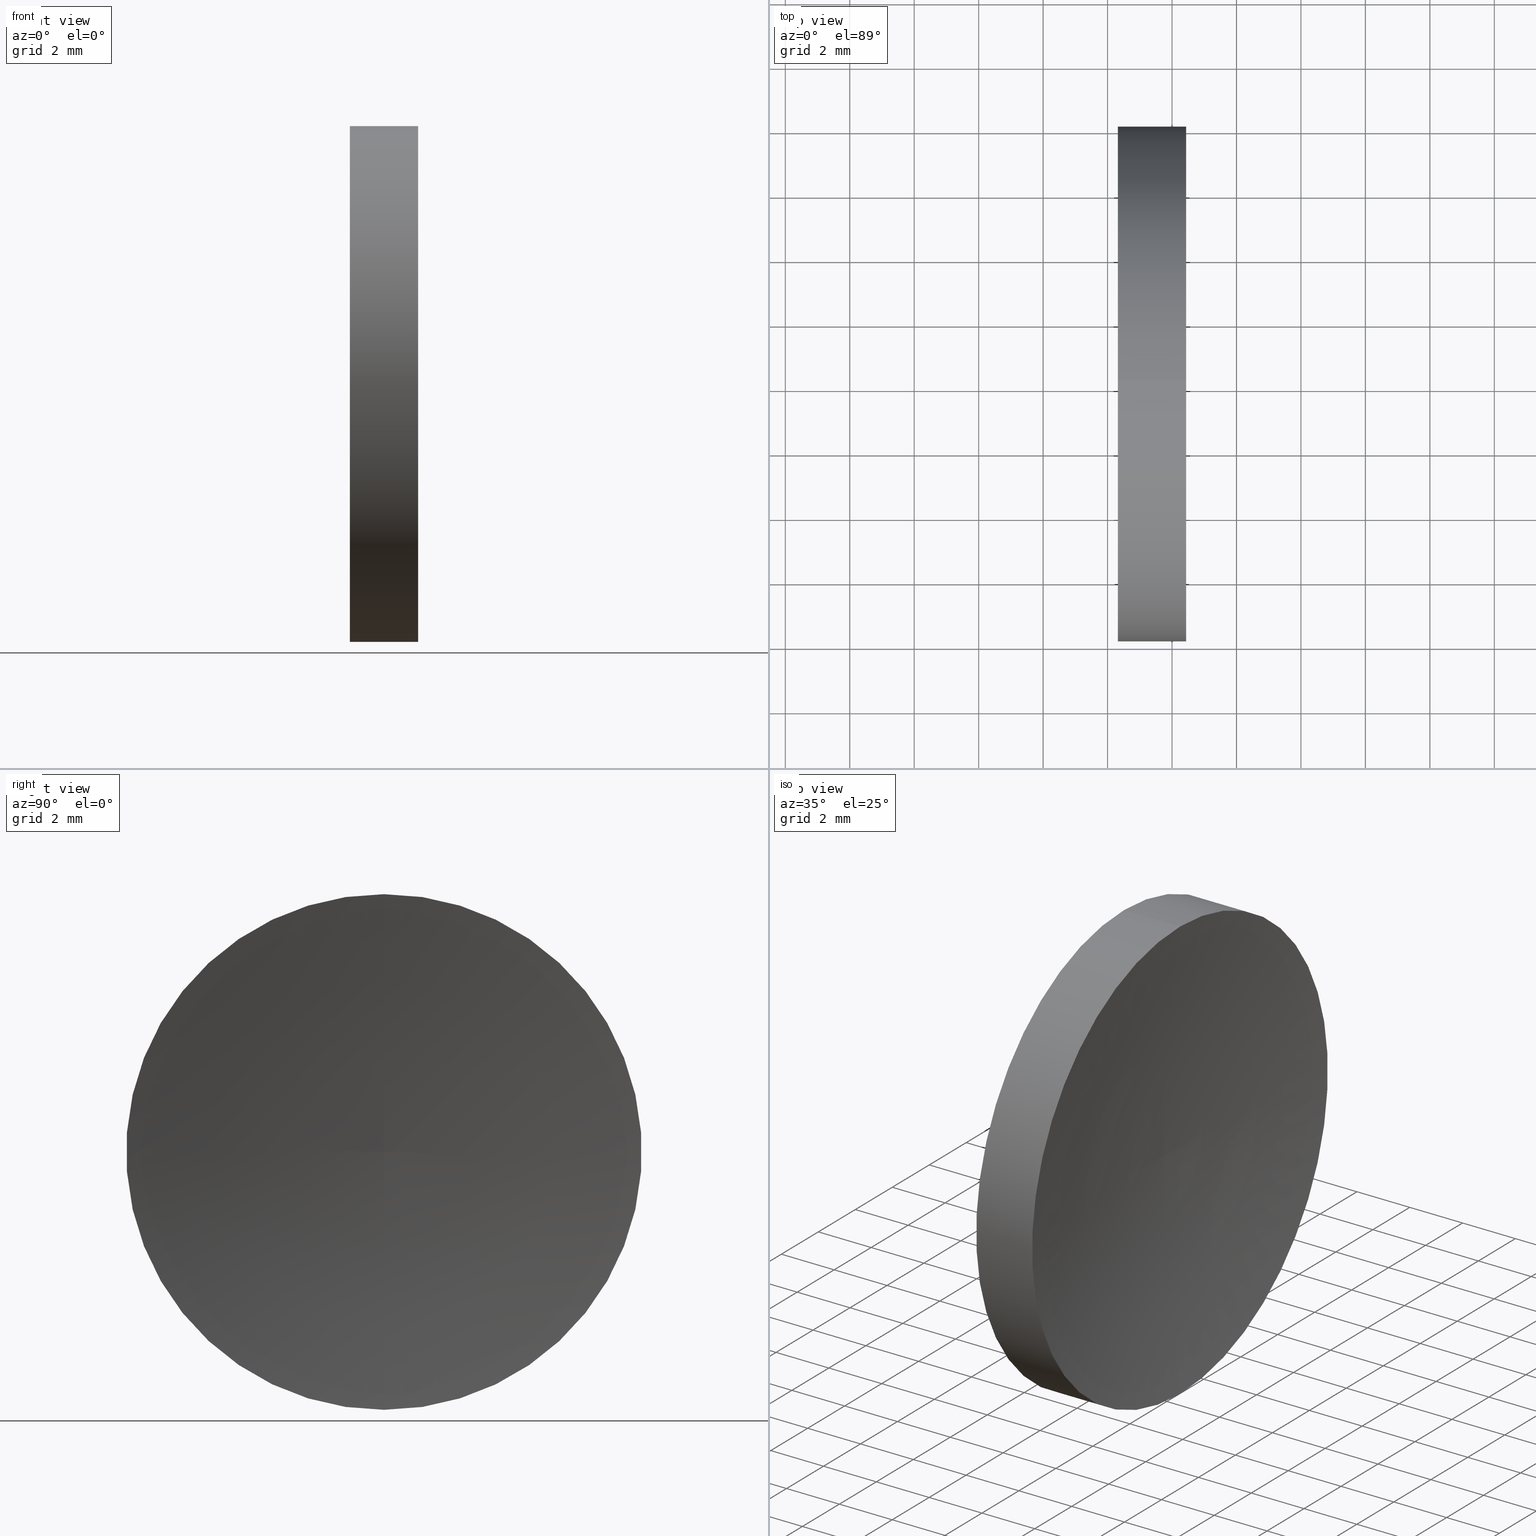
[diagram: canonical four-view strip — front | top / right | iso, engineering-drawing reading convention]
A machine part, canonical four-view strip (front | top / right | iso — engineering-drawing reading convention). The complete STEP part file that produces these views, byte-faithful:
ISO-10303-21;
HEADER;
FILE_DESCRIPTION (( 'STEP AP214' ),
    '1' );
FILE_NAME ('120026.STEP',
    '2019-06-17T01:25:18',
    ( '' ),
    ( '' ),
    'SwSTEP 2.0',
    'SolidWorks 2016',
    '' );
FILE_SCHEMA (( 'AUTOMOTIVE_DESIGN' ));
ENDSEC;

DATA;
#1 = PRESENTATION_LAYER_ASSIGNMENT (  '', '', ( #34 ) ) ;
#2 = ORIENTED_EDGE ( 'NONE', *, *, #86, .F. ) ;
#3 = AXIS2_PLACEMENT_3D ( 'NONE', #114, #64, #141 ) ;
#4 = PRODUCT_RELATED_PRODUCT_CATEGORY ( 'part', '', ( #164 ) ) ;
#5 = DIRECTION ( 'NONE',  ( -0.0000000000000000000, 1.000000000000000000, 1.224646799147353200E-016 ) ) ;
#6 = CARTESIAN_POINT ( 'NONE',  ( 44.31915269315436500, 26.08904114919495900, 8.000000000000003600 ) ) ;
#7 = FILL_AREA_STYLE ('',( #73 ) ) ;
#8 = VERTEX_POINT ( 'NONE', #6 ) ;
#9 = MANIFOLD_SOLID_BREP ( '��ת1', #163 ) ;
#10 = AXIS2_PLACEMENT_3D ( 'NONE', #51, #75, #142 ) ;
#11 = DIRECTION ( 'NONE',  ( -1.000000000000000000, -0.0000000000000000000, -0.0000000000000000000 ) ) ;
#12 = CIRCLE ( 'NONE', #25, 51.64000000000000800 ) ;
#13 = APPLICATION_CONTEXT ( 'automotive_design' ) ;
#14 =( GEOMETRIC_REPRESENTATION_CONTEXT ( 3 ) GLOBAL_UNCERTAINTY_ASSIGNED_CONTEXT ( ( #108 ) ) GLOBAL_UNIT_ASSIGNED_CONTEXT ( ( #137, #26, #154 ) ) REPRESENTATION_CONTEXT ( 'NONE', 'WORKASPACE' ) );
#15 = ORIENTED_EDGE ( 'NONE', *, *, #86, .T. ) ;
#16 = PRODUCT_CONTEXT ( 'NONE', #97, 'mechanical' ) ;
#17 = EDGE_CURVE ( 'NONE', #56, #82, #120, .T. ) ;
#18 = ORIENTED_EDGE ( 'NONE', *, *, #32, .F. ) ;
#19 = EDGE_CURVE ( 'NONE', #82, #127, #12, .T. ) ;
#20 = ORIENTED_EDGE ( 'NONE', *, *, #47, .T. ) ;
#21 = AXIS2_PLACEMENT_3D ( 'NONE', #122, #155, #96 ) ;
#22 = ADVANCED_FACE ( 'NONE', ( #153 ), #44, .F. ) ;
#23 = ORIENTED_EDGE ( 'NONE', *, *, #147, .F. ) ;
#24 = DIRECTION ( 'NONE',  ( 0.0000000000000000000, -1.343705248626496300E-016, 1.000000000000000000 ) ) ;
#25 = AXIS2_PLACEMENT_3D ( 'NONE', #85, #5, #24 ) ;
#26 =( NAMED_UNIT ( * ) PLANE_ANGLE_UNIT ( ) SI_UNIT ( $, .RADIAN. ) );
#27 = DIRECTION ( 'NONE',  ( 0.0000000000000000000, 0.0000000000000000000, 1.000000000000000000 ) ) ;
#28 = ADVANCED_FACE ( 'NONE', ( #52 ), #133, .F. ) ;
#29 = CARTESIAN_POINT ( 'NONE',  ( 97.45914170954007700, 26.08904114919495900, 0.0000000000000000000 ) ) ;
#30 = PRESENTATION_STYLE_ASSIGNMENT (( #112 ) ) ;
#31 = EDGE_LOOP ( 'NONE', ( #145, #71, #152, #2 ) ) ;
#32 = EDGE_CURVE ( 'NONE', #100, #8, #84, .T. ) ;
#33 = EDGE_LOOP ( 'NONE', ( #68, #101, #118 ) ) ;
#34 = STYLED_ITEM ( 'NONE', ( #30 ), #9 ) ;
#35 = CARTESIAN_POINT ( 'NONE',  ( 44.31915269315436500, 26.08904114919495900, 0.0000000000000000000 ) ) ;
#36 = DIRECTION ( 'NONE',  ( 1.000000000000000000, 0.0000000000000000000, 0.0000000000000000000 ) ) ;
#37 = AXIS2_PLACEMENT_3D ( 'NONE', #29, #165, #27 ) ;
#38 = DIRECTION ( 'NONE',  ( -1.000000000000000000, -0.0000000000000000000, -0.0000000000000000000 ) ) ;
#39 = APPLICATION_PROTOCOL_DEFINITION ( 'draft international standard', 'automotive_design', 1998, #13 ) ;
#40 = CARTESIAN_POINT ( 'NONE',  ( 42.44986111413682300, 26.08904114919495900, 0.0000000000000000000 ) ) ;
#41 = SHAPE_DEFINITION_REPRESENTATION ( #117, #134 ) ;
#42 = DIRECTION ( 'NONE',  ( 0.0000000000000000000, 0.0000000000000000000, -1.000000000000000000 ) ) ;
#43 = CARTESIAN_POINT ( 'NONE',  ( 97.45914170954007700, 26.08904114919495900, 0.03368067048223344400 ) ) ;
#44 = PLANE ( 'NONE',  #151 ) ;
#45 = EDGE_LOOP ( 'NONE', ( #111, #130, #15, #18 ) ) ;
#46 = PRODUCT_DEFINITION_CONTEXT ( 'detailed design', #13, 'design' ) ;
#47 = EDGE_CURVE ( 'NONE', #8, #100, #150, .T. ) ;
#48 = ADVANCED_FACE ( 'NONE', ( #95 ), #80, .T. ) ;
#49 = AXIS2_PLACEMENT_3D ( 'NONE', #121, #102, #62 ) ;
#50 = CARTESIAN_POINT ( 'NONE',  ( 45.81915269315437200, 26.08904114919495900, 0.0000000000000000000 ) ) ;
#51 = CARTESIAN_POINT ( 'NONE',  ( 44.31915269315436500, 26.08904114919495900, 0.0000000000000000000 ) ) ;
#52 = FACE_OUTER_BOUND ( 'NONE', #33, .T. ) ;
#53 = FILL_AREA_STYLE ('',( #131 ) ) ;
#54 =( NAMED_UNIT ( * ) PLANE_ANGLE_UNIT ( ) SI_UNIT ( $, .RADIAN. ) );
#55 = TOROIDAL_SURFACE ( 'NONE', #37, 0.03368067048223344400, 51.64000000000000800 ) ;
#56 = VERTEX_POINT ( 'NONE', #157 ) ;
#57 = AXIS2_PLACEMENT_3D ( 'NONE', #66, #67, #78 ) ;
#58 = AXIS2_PLACEMENT_3D ( 'NONE', #40, #38, #104 ) ;
#59 = DIRECTION ( 'NONE',  ( 0.0000000000000000000, 0.0000000000000000000, 1.000000000000000000 ) ) ;
#60 = STYLED_ITEM ( 'NONE', ( #109 ), #134 ) ;
#61 = ORIENTED_EDGE ( 'NONE', *, *, #19, .T. ) ;
#62 = DIRECTION ( 'NONE',  ( 0.0000000000000000000, 0.0000000000000000000, 1.000000000000000000 ) ) ;
#63 = CARTESIAN_POINT ( 'NONE',  ( 42.44986111413682300, 26.08904114919495900, 0.0000000000000000000 ) ) ;
#64 = DIRECTION ( 'NONE',  ( -1.000000000000000000, -0.0000000000000000000, -0.0000000000000000000 ) ) ;
#65 = CARTESIAN_POINT ( 'NONE',  ( 44.31915269315436500, 26.08904114919495900, -8.000000000000003600 ) ) ;
#66 = CARTESIAN_POINT ( 'NONE',  ( 0.0000000000000000000, 0.0000000000000000000, 0.0000000000000000000 ) ) ;
#67 = DIRECTION ( 'NONE',  ( 0.0000000000000000000, 0.0000000000000000000, 1.000000000000000000 ) ) ;
#68 = ORIENTED_EDGE ( 'NONE', *, *, #19, .F. ) ;
#69 = PRESENTATION_LAYER_ASSIGNMENT (  '', '', ( #60 ) ) ;
#70 = VECTOR ( 'NONE', #93, 1000.000000000000000 ) ;
#71 = ORIENTED_EDGE ( 'NONE', *, *, #105, .T. ) ;
#72 = LINE ( 'NONE', #77, #70 ) ;
#73 = FILL_AREA_STYLE_COLOUR ( '', #159 ) ;
#74 = AXIS2_PLACEMENT_3D ( 'NONE', #63, #11, #92 ) ;
#75 = DIRECTION ( 'NONE',  ( -1.000000000000000000, -0.0000000000000000000, -0.0000000000000000000 ) ) ;
#76 = PRODUCT_DEFINITION ( 'δ֪', '', #148, #46 ) ;
#77 = CARTESIAN_POINT ( 'NONE',  ( 42.44986111413682300, 26.08904114919495900, -8.000000000000000000 ) ) ;
#78 = DIRECTION ( 'NONE',  ( 1.000000000000000000, 0.0000000000000000000, 0.0000000000000000000 ) ) ;
#79 = CIRCLE ( 'NONE', #161, 51.64000000000000800 ) ;
#80 = CYLINDRICAL_SURFACE ( 'NONE', #74, 8.000000000000000000 ) ;
#81 =( LENGTH_UNIT ( ) NAMED_UNIT ( * ) SI_UNIT ( .MILLI., .METRE. ) );
#82 = VERTEX_POINT ( 'NONE', #90 ) ;
#83 = CYLINDRICAL_SURFACE ( 'NONE', #58, 8.000000000000000000 ) ;
#84 = CIRCLE ( 'NONE', #3, 8.000000000000003600 ) ;
#85 = CARTESIAN_POINT ( 'NONE',  ( 97.45914170954007700, 26.08904114919495900, -0.03368067048223344400 ) ) ;
#86 = EDGE_CURVE ( 'NONE', #56, #8, #138, .T. ) ;
#87 = FACE_OUTER_BOUND ( 'NONE', #31, .T. ) ;
#88 = DIRECTION ( 'NONE',  ( 0.0000000000000000000, 0.0000000000000000000, -1.000000000000000000 ) ) ;
#89 = ORIENTED_EDGE ( 'NONE', *, *, #149, .F. ) ;
#90 = CARTESIAN_POINT ( 'NONE',  ( 46.43730955564588200, 26.08904114919495900, -8.000000000000007100 ) ) ;
#91 = MECHANICAL_DESIGN_GEOMETRIC_PRESENTATION_REPRESENTATION (  '', ( #34 ), #14 ) ;
#92 = DIRECTION ( 'NONE',  ( 0.0000000000000000000, 0.0000000000000000000, 1.000000000000000000 ) ) ;
#93 = DIRECTION ( 'NONE',  ( -1.000000000000000000, -0.0000000000000000000, -0.0000000000000000000 ) ) ;
#94 =( NAMED_UNIT ( * ) SI_UNIT ( $, .STERADIAN. ) SOLID_ANGLE_UNIT ( ) );
#95 = FACE_OUTER_BOUND ( 'NONE', #45, .T. ) ;
#96 = DIRECTION ( 'NONE',  ( 0.0000000000000000000, 0.0000000000000000000, 1.000000000000000000 ) ) ;
#97 = APPLICATION_CONTEXT ( 'automotive_design' ) ;
#98 =( GEOMETRIC_REPRESENTATION_CONTEXT ( 3 ) GLOBAL_UNCERTAINTY_ASSIGNED_CONTEXT ( ( #135 ) ) GLOBAL_UNIT_ASSIGNED_CONTEXT ( ( #160, #116, #166 ) ) REPRESENTATION_CONTEXT ( 'NONE', 'WORKASPACE' ) );
#99 = ORIENTED_EDGE ( 'NONE', *, *, #32, .T. ) ;
#100 = VERTEX_POINT ( 'NONE', #65 ) ;
#101 = ORIENTED_EDGE ( 'NONE', *, *, #17, .F. ) ;
#102 = DIRECTION ( 'NONE',  ( -1.000000000000000000, -0.0000000000000000000, -0.0000000000000000000 ) ) ;
#103 =( GEOMETRIC_REPRESENTATION_CONTEXT ( 3 ) GLOBAL_UNCERTAINTY_ASSIGNED_CONTEXT ( ( #158 ) ) GLOBAL_UNIT_ASSIGNED_CONTEXT ( ( #81, #54, #94 ) ) REPRESENTATION_CONTEXT ( 'NONE', 'WORKASPACE' ) );
#104 = DIRECTION ( 'NONE',  ( 0.0000000000000000000, 0.0000000000000000000, 1.000000000000000000 ) ) ;
#105 = EDGE_CURVE ( 'NONE', #82, #100, #72, .T. ) ;
#106 = CARTESIAN_POINT ( 'NONE',  ( 42.44986111413682300, 26.08904114919495900, 8.000000000000000000 ) ) ;
#107 = VECTOR ( 'NONE', #156, 1000.000000000000000 ) ;
#108 = UNCERTAINTY_MEASURE_WITH_UNIT (LENGTH_MEASURE( 1.000000000000000100E-005 ), #137, 'distance_accuracy_value', 'NONE');
#109 = PRESENTATION_STYLE_ASSIGNMENT (( #143 ) ) ;
#110 = COLOUR_RGB ( '',1.000000000000000000, 1.000000000000000000, 1.000000000000000000 ) ;
#111 = ORIENTED_EDGE ( 'NONE', *, *, #105, .F. ) ;
#112 = SURFACE_STYLE_USAGE ( .BOTH. , #126 ) ;
#113 = DIRECTION ( 'NONE',  ( -1.000000000000000000, -0.0000000000000000000, -0.0000000000000000000 ) ) ;
#114 = CARTESIAN_POINT ( 'NONE',  ( 44.31915269315436500, 26.08904114919495900, 0.0000000000000000000 ) ) ;
#115 = ADVANCED_FACE ( 'NONE', ( #87 ), #83, .T. ) ;
#116 =( NAMED_UNIT ( * ) PLANE_ANGLE_UNIT ( ) SI_UNIT ( $, .RADIAN. ) );
#117 = PRODUCT_DEFINITION_SHAPE ( 'NONE', 'NONE',  #76 ) ;
#118 = ORIENTED_EDGE ( 'NONE', *, *, #147, .T. ) ;
#119 = EDGE_LOOP ( 'NONE', ( #20, #99 ) ) ;
#120 = CIRCLE ( 'NONE', #140, 7.999999999999996400 ) ;
#121 = CARTESIAN_POINT ( 'NONE',  ( 97.45914170954007700, 26.08904114919495900, 0.0000000000000000000 ) ) ;
#122 = CARTESIAN_POINT ( 'NONE',  ( 46.43730955564588200, 26.08904114919495900, 0.0000000000000000000 ) ) ;
#123 = ADVANCED_FACE ( 'NONE', ( #124 ), #55, .F. ) ;
#124 = FACE_OUTER_BOUND ( 'NONE', #125, .T. ) ;
#125 = EDGE_LOOP ( 'NONE', ( #89, #61, #23 ) ) ;
#126 = SURFACE_SIDE_STYLE ('',( #162 ) ) ;
#127 = VERTEX_POINT ( 'NONE', #50 ) ;
#128 = MECHANICAL_DESIGN_GEOMETRIC_PRESENTATION_REPRESENTATION (  '', ( #60 ), #103 ) ;
#129 = SURFACE_SIDE_STYLE ('',( #144 ) ) ;
#130 = ORIENTED_EDGE ( 'NONE', *, *, #149, .T. ) ;
#131 = FILL_AREA_STYLE_COLOUR ( '', #110 ) ;
#132 = DIRECTION ( 'NONE',  ( 0.0000000000000000000, -1.000000000000000000, 0.0000000000000000000 ) ) ;
#133 = TOROIDAL_SURFACE ( 'NONE', #49, 0.03368067048223344400, 51.64000000000000800 ) ;
#134 = ADVANCED_BREP_SHAPE_REPRESENTATION ( '120026', ( #9, #57 ), #98 ) ;
#135 = UNCERTAINTY_MEASURE_WITH_UNIT (LENGTH_MEASURE( 1.000000000000000100E-005 ), #160, 'distance_accuracy_value', 'NONE');
#136 = CARTESIAN_POINT ( 'NONE',  ( 46.43730955564588200, 26.08904114919495900, 0.0000000000000000000 ) ) ;
#137 =( LENGTH_UNIT ( ) NAMED_UNIT ( * ) SI_UNIT ( .MILLI., .METRE. ) );
#138 = LINE ( 'NONE', #106, #107 ) ;
#139 = CIRCLE ( 'NONE', #21, 7.999999999999996400 ) ;
#140 = AXIS2_PLACEMENT_3D ( 'NONE', #136, #113, #59 ) ;
#141 = DIRECTION ( 'NONE',  ( 0.0000000000000000000, 0.0000000000000000000, 1.000000000000000000 ) ) ;
#142 = DIRECTION ( 'NONE',  ( 0.0000000000000000000, 0.0000000000000000000, 1.000000000000000000 ) ) ;
#143 = SURFACE_STYLE_USAGE ( .BOTH. , #129 ) ;
#144 = SURFACE_STYLE_FILL_AREA ( #53 ) ;
#145 = ORIENTED_EDGE ( 'NONE', *, *, #17, .T. ) ;
#146 = APPLICATION_PROTOCOL_DEFINITION ( 'draft international standard', 'automotive_design', 1998, #97 ) ;
#147 = EDGE_CURVE ( 'NONE', #56, #127, #79, .T. ) ;
#148 = PRODUCT_DEFINITION_FORMATION_WITH_SPECIFIED_SOURCE ( '�κ�', '', #164, .NOT_KNOWN. ) ;
#149 = EDGE_CURVE ( 'NONE', #82, #56, #139, .T. ) ;
#150 = CIRCLE ( 'NONE', #10, 8.000000000000003600 ) ;
#151 = AXIS2_PLACEMENT_3D ( 'NONE', #35, #36, #88 ) ;
#152 = ORIENTED_EDGE ( 'NONE', *, *, #47, .F. ) ;
#153 = FACE_OUTER_BOUND ( 'NONE', #119, .T. ) ;
#154 =( NAMED_UNIT ( * ) SI_UNIT ( $, .STERADIAN. ) SOLID_ANGLE_UNIT ( ) );
#155 = DIRECTION ( 'NONE',  ( -1.000000000000000000, -0.0000000000000000000, -0.0000000000000000000 ) ) ;
#156 = DIRECTION ( 'NONE',  ( -1.000000000000000000, -0.0000000000000000000, -0.0000000000000000000 ) ) ;
#157 = CARTESIAN_POINT ( 'NONE',  ( 46.43730955564588200, 26.08904114919495900, 8.000000000000007100 ) ) ;
#158 = UNCERTAINTY_MEASURE_WITH_UNIT (LENGTH_MEASURE( 1.000000000000000100E-005 ), #81, 'distance_accuracy_value', 'NONE');
#159 = COLOUR_RGB ( '',1.000000000000000000, 1.000000000000000000, 1.000000000000000000 ) ;
#160 =( LENGTH_UNIT ( ) NAMED_UNIT ( * ) SI_UNIT ( .MILLI., .METRE. ) );
#161 = AXIS2_PLACEMENT_3D ( 'NONE', #43, #132, #42 ) ;
#162 = SURFACE_STYLE_FILL_AREA ( #7 ) ;
#163 = CLOSED_SHELL ( 'NONE', ( #115, #123, #28, #48, #22 ) ) ;
#164 = PRODUCT ( '120026', '120026', '', ( #16 ) ) ;
#165 = DIRECTION ( 'NONE',  ( -1.000000000000000000, -0.0000000000000000000, -0.0000000000000000000 ) ) ;
#166 =( NAMED_UNIT ( * ) SI_UNIT ( $, .STERADIAN. ) SOLID_ANGLE_UNIT ( ) );
ENDSEC;
END-ISO-10303-21;
